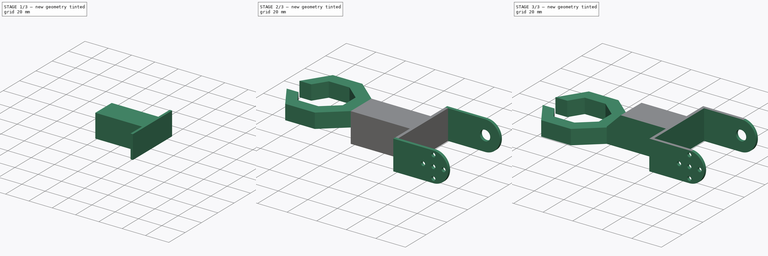
[diagram: build sequence overview — one tinted view per stage of 3, left to right]
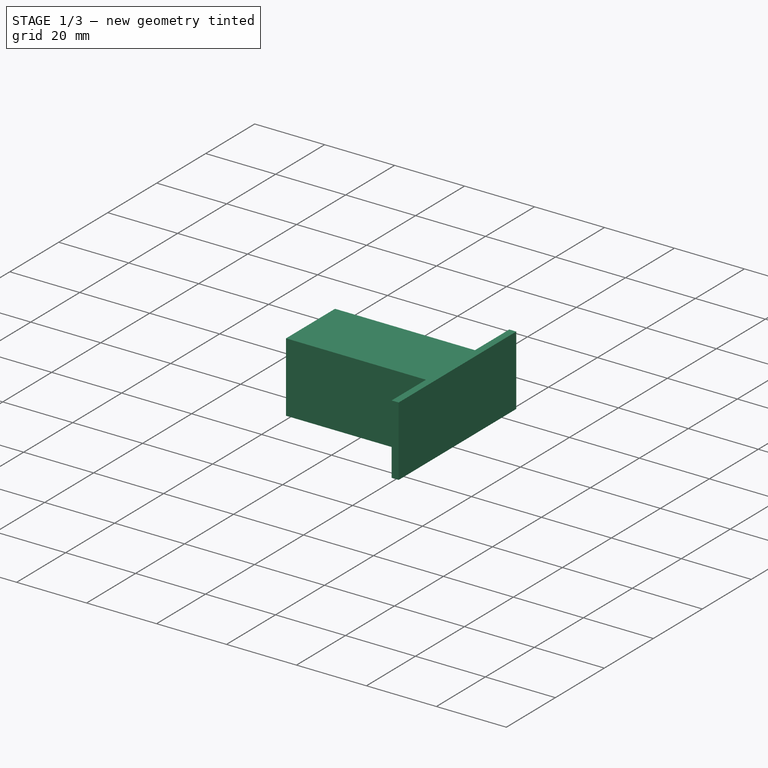
[diagram: stage 1 of 3 — iso view after this stage's code; geometry added in this stage tinted green]
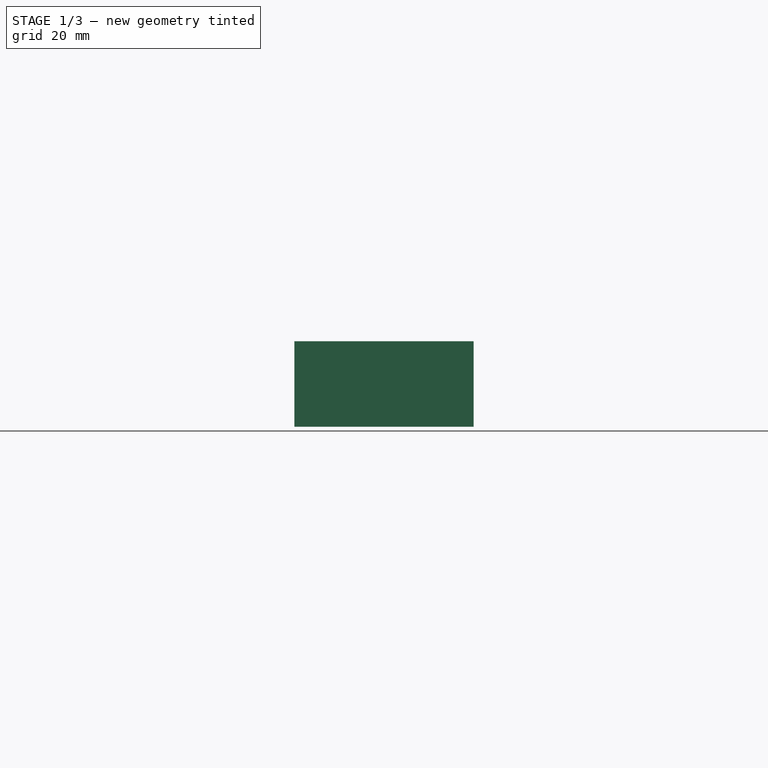
[diagram: stage 1 of 3 — front view after this stage's code; geometry added in this stage tinted green]
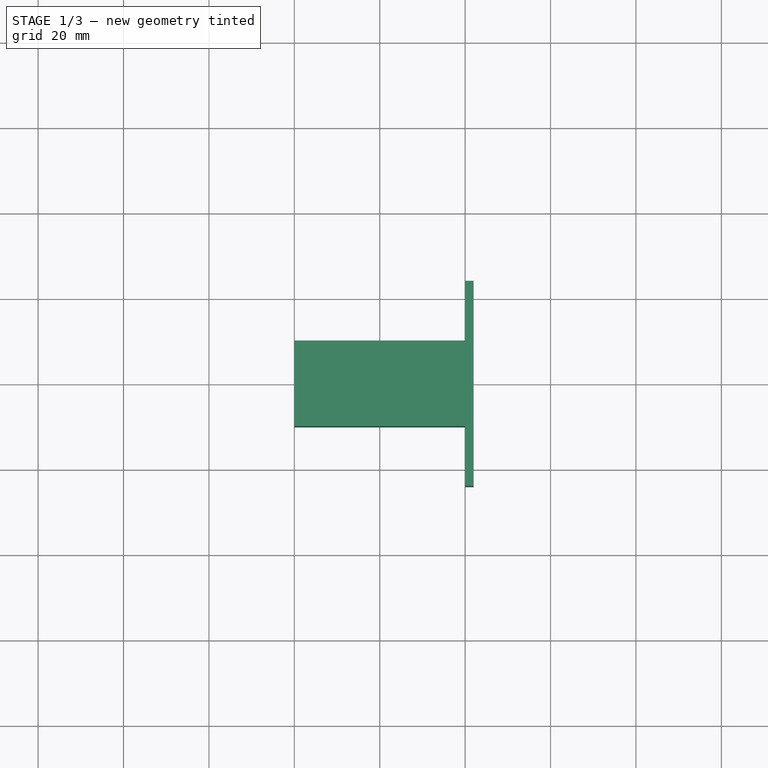
[diagram: stage 1 of 3 — top view after this stage's code; geometry added in this stage tinted green]
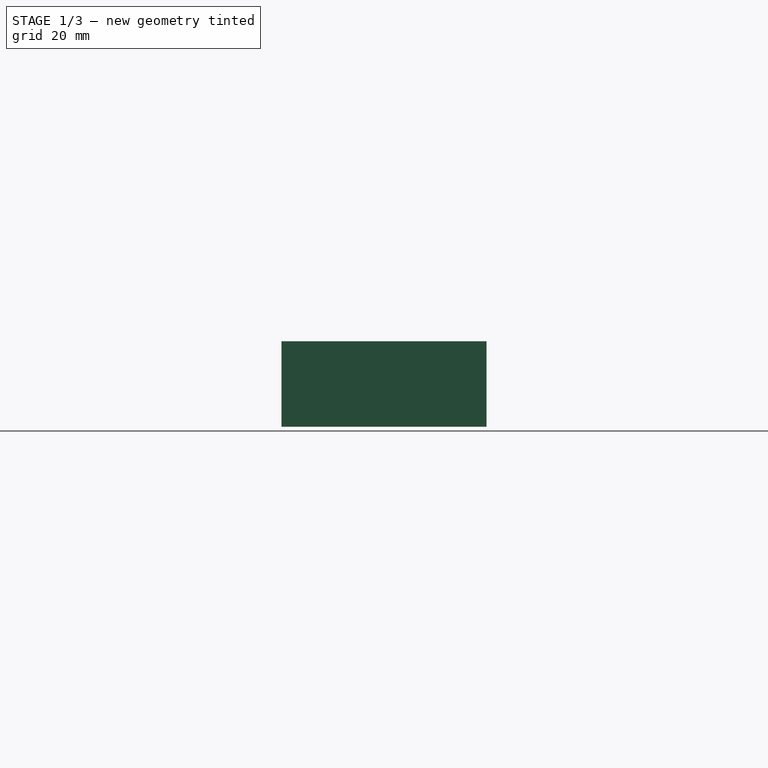
[diagram: stage 1 of 3 — right view after this stage's code; geometry added in this stage tinted green]
FCSTD DOCUMENT  (FreeCAD 0.20R29177 +426 (Git))
Label: 10L_lower_arm
License: All rights reserved
LicenseURL: http://en.wikipedia.org/wiki/All_rights_reserved
objects: Sketcher::SketchObject×5, PartDesign::Pad×5, Spreadsheet::Sheet×1, PartDesign::Chamfer×1, PartDesign::Body×1, Part::Mirroring×1
note: 19 computed .brp shape members not serialized (recipe doc carries the construction recipe); baked Part::Feature solids carry a one-line shape summary decoded from their .brp

FEATURE [Sketcher::SketchObject] Sketch
  FullyConstrained = true
  MapMode = 5
  Support = -> [XY_Plane]
  expr: Constraints[6] = Spreadsheet.connector_x_len
  expr: Constraints[8] = Spreadsheet.connector_y_len
  sketch-geometry (4):
    g0: LineSegment StartX=-20 StartY=10 StartZ=0 EndX=20 EndY=10 EndZ=0
    g1: LineSegment StartX=20 StartY=10 StartZ=0 EndX=20 EndY=-10 EndZ=0
    g2: LineSegment StartX=20 StartY=-10 StartZ=0 EndX=-20 EndY=-10 EndZ=0
    g3: LineSegment StartX=-20 StartY=-10 StartZ=0 EndX=-20 EndY=10 EndZ=0
  constraints (10):
    c: Coincident(g0,g1)
    c: Coincident(g1,g2)
    c: Coincident(g2,g3)
    c: Coincident(g3,g0)
    c: Horizontal(g2)
    c: Vertical(g1)
    c: DistanceX(g0,g0) = 40
    c: Symmetric(g0,g2,g-1)
    c: DistanceY(g2,g0) = 20
    c: Symmetric(g0,g0,g-2)
FEATURE [PartDesign::Pad] Pad
  Direction = (0,0,1)
  Length = 20
  Length2 = 10
  Profile = -> Sketch
  ReferenceAxis = -> Sketch [N_Axis]
  Type = 0
FEATURE [Sketcher::SketchObject] Sketch001
  ExternalGeometry = -> [Pad]
  FullyConstrained = true
  MapMode = 5
  Placement = pos=(20,0,0) rot=(0.57735,0.57735,0.57735;2.0944rad)
  Support = -> [Pad]
  expr: Constraints[6] = Spreadsheet.elbow_plate_y_len
  expr: Constraints[7] = Spreadsheet.elbow_plate_z_len
  sketch-geometry (4):
    g0: LineSegment StartX=-24 StartY=20 StartZ=0 EndX=24 EndY=20 EndZ=0
    g1: LineSegment StartX=24 StartY=20 StartZ=0 EndX=24 EndY=0 EndZ=0
    g2: LineSegment StartX=24 StartY=0 StartZ=0 EndX=-24 EndY=0 EndZ=0
    g3: LineSegment StartX=-24 StartY=0 StartZ=0 EndX=-24 EndY=20 EndZ=0
  constraints (11):
    c: Coincident(g0,g1)
    c: Coincident(g1,g2)
    c: Coincident(g2,g3)
    c: Coincident(g3,g0)
    c: Horizontal(g2)
    c: Vertical(g1)
    c: DistanceX(g0,g0) = 48
    c: DistanceY(g2,g0) = 20
    c: Symmetric(g0,g0,g-2)
    c: Equal(g0,g2)
    c: Horizontal(g2,g-6)
FEATURE [PartDesign::Pad] Pad001
  BaseFeature = -> Pad
  Direction = (1,0,0)
  Length = 2
  Length2 = 10
  Profile = -> Sketch001
  ReferenceAxis = -> Sketch001 [N_Axis]
  Type = 0
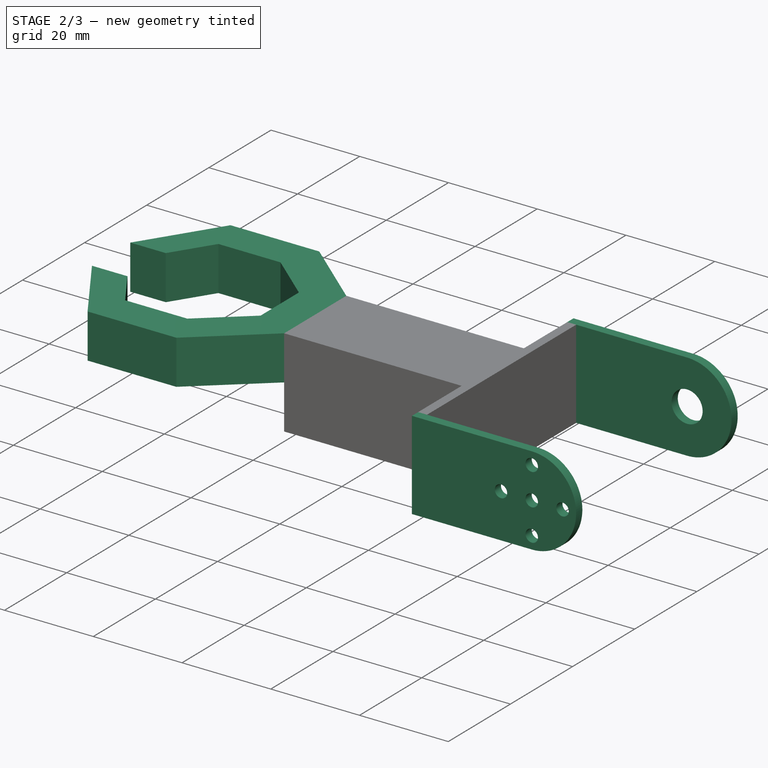
[diagram: stage 2 of 3 — iso view after this stage's code; geometry added in this stage tinted green]
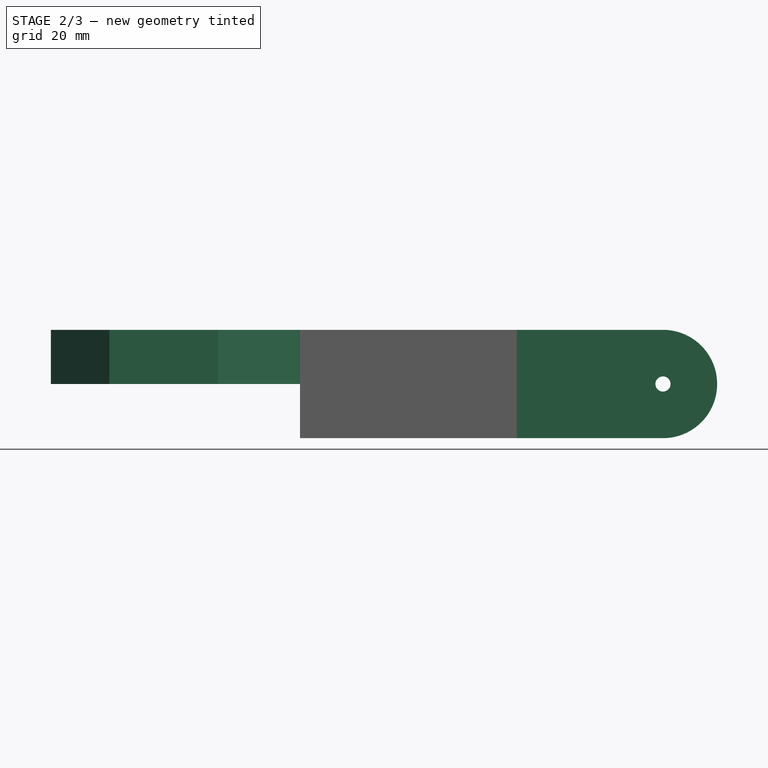
[diagram: stage 2 of 3 — front view after this stage's code; geometry added in this stage tinted green]
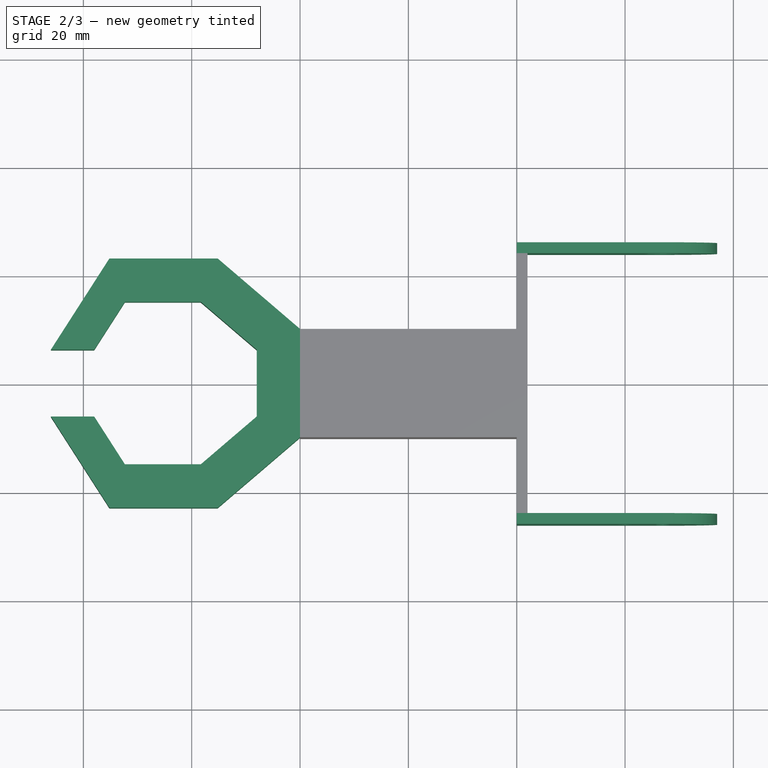
[diagram: stage 2 of 3 — top view after this stage's code; geometry added in this stage tinted green]
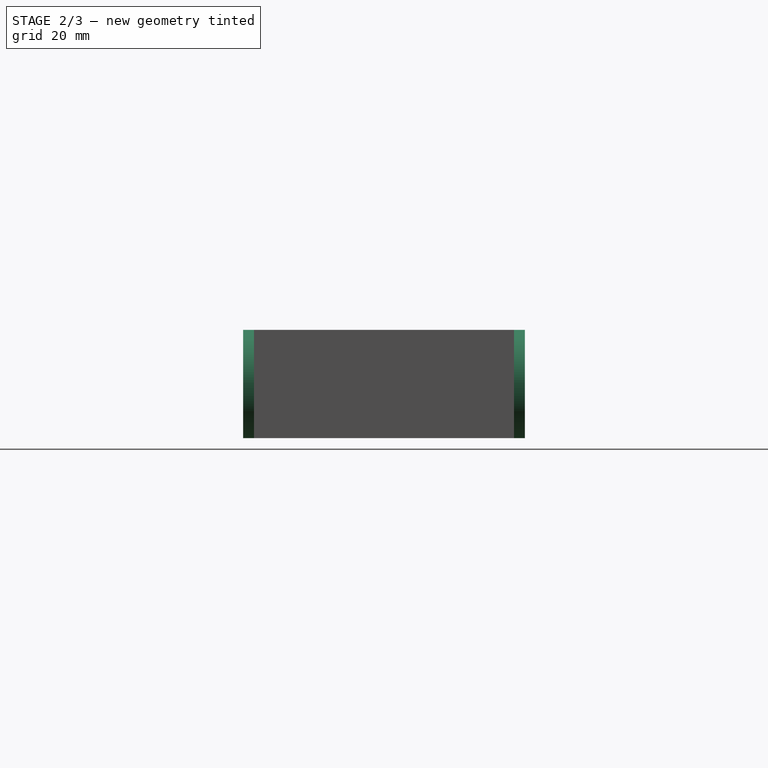
[diagram: stage 2 of 3 — right view after this stage's code; geometry added in this stage tinted green]
FEATURE [Sketcher::SketchObject] Sketch002
  ExternalGeometry = -> [Pad001]
  FullyConstrained = true
  MapMode = 5
  Placement = pos=(0,-24,0) rot=(1,0,0;1.5708rad)
  Support = -> [Pad001]
  expr: Constraints[11] = Spreadsheet.servo_center_x_pos
  expr: Constraints[2] = Spreadsheet.servo_outer_dist
  expr: Constraints[7] = Spreadsheet.servo_hole_dia
  expr: Constraints[8] = Spreadsheet.servo_base_dist
  sketch-geometry (9):
    g0: Circle CenterX=47 CenterY=10 CenterZ=0 NormalX=0 NormalY=0 NormalZ=1 AngleXU=0 Radius=1.4
    g1: Circle CenterX=47 CenterY=17.205 CenterZ=0 NormalX=0 NormalY=0 NormalZ=1 AngleXU=0 Radius=1.4
    g2: Circle CenterX=53.9345 CenterY=10 CenterZ=0 NormalX=0 NormalY=0 NormalZ=1 AngleXU=0 Radius=1.4
    g3: Circle CenterX=47 CenterY=2.795 CenterZ=0 NormalX=0 NormalY=0 NormalZ=1 AngleXU=0 Radius=1.4
    g4: Circle CenterX=40.0655 CenterY=10 CenterZ=0 NormalX=0 NormalY=0 NormalZ=1 AngleXU=0 Radius=1.4
    g5: LineSegment StartX=20 StartY=20 StartZ=0 EndX=47 EndY=20 EndZ=0
    g6: LineSegment StartX=20 StartY=0 StartZ=0 EndX=47 EndY=0 EndZ=0
    g7: ArcOfCircle CenterX=47 CenterY=10 CenterZ=0 NormalX=0 NormalY=0 NormalZ=1 AngleXU=0 Radius=10 StartAngle=4.71239 EndAngle=7.85398
    g8: LineSegment StartX=20 StartY=20 StartZ=0 EndX=20 EndY=0 EndZ=0
  constraints (23):
    c: Horizontal(g4,g2)
    c: Vertical(g1,g3)
    c: Distance(g4,g1) = 10
    c: Equal(g3,g0)
    c: Equal(g3,g4)
    c: Equal(g3,g1)
    c: Equal(g3,g2)
    c: Diameter(g3) = 2.8
    c: DistanceY(g3,g1) = 14.41
    c: Symmetric(g4,g2,g0)
    c: Symmetric(g1,g3,g0)
    c: DistanceX(g-4,g0) = 27
    c: Coincident(g5,g-4)
    c: Horizontal(g5)
    c: Coincident(g6,g-5)
    c: Horizontal(g6)
    c: Vertical(g5,g6)
    c: Coincident(g7,g5)
    c: Coincident(g7,g6)
    c: Vertical(g7,g5)
    c: Coincident(g7,g0)
    c: Coincident(g8,g5)
    c: Coincident(g8,g6)
FEATURE [PartDesign::Pad] Pad002
  BaseFeature = -> Pad001
  Direction = (0,-1,2e-16)
  Length = 2
  Length2 = 10
  Profile = -> Sketch002
  ReferenceAxis = -> Sketch002 [N_Axis]
  Type = 0
FEATURE [Spreadsheet::Sheet] Spreadsheet
  cells = A2=thickness; B2(thickness)=2; A3=connector_x_len; B3(connector_x_len)=40; A4=connector_y_len; B4(connector_y_len)=20; A5=elbow_plate_y_len; B5(elbow_plate_y_len)=48; A6=elbow_plate_z_len; B6(elbow_plate_z_len)=20; A7=servo_center_x_pos; B7(servo_center_x_pos)==B2 + 25; C7=c; A8=servo_outer_dist; B8(servo_outer_dist)=10; A9=servo_base_dist; B9(servo_base_dist)=14.41; C9=should be calced; A10=servo_hole_dia; B10(servo_hole_dia)=2.8; A11=axis_hole_dia; B11(axis_hole_dia)=7; A12=finger_dia; B12(finger_dia)=8; A13=hand_inner_dia; B13(hand_inner_dia)=30
FEATURE [Sketcher::SketchObject] Sketch003
  ExternalGeometry = -> [Pad002]
  FullyConstrained = true
  MapMode = 5
  Placement = pos=(0,24,0) rot=(0,0.707107,0.707107;3.14159rad)
  Support = -> [Pad002]
  expr: Constraints[12] = Spreadsheet.axis_hole_dia
  expr: Constraints[7] = Spreadsheet.servo_center_x_pos
  sketch-geometry (5):
    g0: LineSegment StartX=-20 StartY=20 StartZ=0 EndX=-47 EndY=20 EndZ=0
    g1: LineSegment StartX=-20 StartY=0 StartZ=0 EndX=-47 EndY=0 EndZ=0
    g2: Circle CenterX=-47 CenterY=10 CenterZ=0 NormalX=0 NormalY=0 NormalZ=1 AngleXU=0 Radius=3.5
    g3: LineSegment StartX=-20 StartY=20 StartZ=0 EndX=-20 EndY=0 EndZ=0
    g4: ArcOfCircle CenterX=-47 CenterY=10 CenterZ=0 NormalX=0 NormalY=0 NormalZ=1 AngleXU=0 Radius=10 StartAngle=1.5708 EndAngle=4.71239
  constraints (13):
    c: Coincident(g0,g-3)
    c: Horizontal(g0)
    c: Coincident(g1,g-4)
    c: PointOnObject(g1,g-1)
    c: Coincident(g3,g0)
    c: Coincident(g3,g1)
    c: Vertical(g0,g1)
    c: DistanceX(g2,g1) = 27
    c: Symmetric(g0,g1,g2)
    c: Coincident(g4,g0)
    c: Coincident(g4,g1)
    c: Vertical(g4,g0)
    c: Diameter(g2) = 7
FEATURE [PartDesign::Pad] Pad003
  BaseFeature = -> Pad002
  Direction = (0,1,-2e-16)
  Length = 2
  Length2 = 10
  Profile = -> Sketch003
  ReferenceAxis = -> Sketch003 [N_Axis]
  Type = 0
  expr: Length = Spreadsheet.thickness
FEATURE [Sketcher::SketchObject] Sketch004
  ExternalGeometry = -> [Pad003]
  FullyConstrained = true
  MapMode = 5
  Placement = pos=(0,0,20) rot=(0,0,1;0rad)
  Support = -> [Pad003]
  expr: Constraints[21] = Spreadsheet.finger_dia
  expr: Constraints[22] = Spreadsheet.finger_dia
  expr: Constraints[23] = Spreadsheet.finger_dia
  expr: Constraints[25] = Spreadsheet.hand_inner_dia
  expr: Constraints[26] = Spreadsheet.hand_inner_dia
  expr: Constraints[32] = Spreadsheet.connector_y_len
  expr: Constraints[33] = Spreadsheet.connector_y_len
  expr: Constraints[34] = Spreadsheet.connector_y_len
  expr: Constraints[35] = Spreadsheet.connector_y_len
  expr: Constraints[36] = Spreadsheet.connector_y_len
  expr: Constraints[41] = Spreadsheet.finger_dia
  sketch-geometry (16):
    g0: LineSegment StartX=-20 StartY=10 StartZ=0 EndX=-35.1987 EndY=23 EndZ=0
    g1: LineSegment StartX=-35.1987 StartY=23 StartZ=0 EndX=-55.1987 EndY=23 EndZ=0
    g2: LineSegment StartX=-55.1987 StartY=23 StartZ=0 EndX=-66 EndY=6.16754 EndZ=0
    g3: LineSegment StartX=-66 StartY=6.16754 StartZ=0 EndX=-58 EndY=6.16754 EndZ=0
    g4: LineSegment StartX=-58 StartY=6.16754 StartZ=0 EndX=-52.3323 EndY=15 EndZ=0
    g5: LineSegment StartX=-52.3323 StartY=15 StartZ=0 EndX=-38.3263 EndY=15 EndZ=0
    g6: LineSegment StartX=-38.3263 StartY=15 StartZ=0 EndX=-28 EndY=6.16754 EndZ=0
    g7: LineSegment StartX=-28 StartY=6.16754 StartZ=0 EndX=-28 EndY=-6.16754 EndZ=0
    g8: LineSegment StartX=-28 StartY=-6.16754 StartZ=0 EndX=-38.3263 EndY=-15 EndZ=0
    g9: LineSegment StartX=-38.3263 StartY=-15 StartZ=0 EndX=-52.3323 EndY=-15 EndZ=0
    g10: LineSegment StartX=-52.3323 StartY=-15 StartZ=0 EndX=-58 EndY=-6.16754 EndZ=0
    g11: LineSegment StartX=-58 StartY=-6.16754 StartZ=0 EndX=-66 EndY=-6.16754 EndZ=0
    g12: LineSegment StartX=-66 StartY=-6.16754 StartZ=0 EndX=-55.1987 EndY=-23 EndZ=0
    g13: LineSegment StartX=-55.1987 StartY=-23 StartZ=0 EndX=-35.1987 EndY=-23 EndZ=0
    g14: LineSegment StartX=-35.1987 StartY=-23 StartZ=0 EndX=-20 EndY=-10 EndZ=0
    g15: LineSegment StartX=-20 StartY=-10 StartZ=0 EndX=-20 EndY=10 EndZ=0
  constraints (42):
    c: Coincident(g0,g-3)
    c: Coincident(g0,g1)
    c: Horizontal(g1)
    c: Coincident(g1,g2)
    c: Coincident(g3,g4)
    c: Coincident(g4,g5)
    c: Horizontal(g5)
    c: Coincident(g5,g6)
    c: Coincident(g6,g7)
    c: Coincident(g7,g8)
    c: Coincident(g8,g9)
    c: Horizontal(g9)
    c: Coincident(g9,g10)
    c: Coincident(g10,g11)
    c: Coincident(g11,g12)
    c: Coincident(g12,g13)
    c: Horizontal(g13)
    c: Coincident(g13,g14)
    c: Coincident(g14,g-4)
    c: Coincident(g14,g15)
    c: Coincident(g15,g0)
    c: DistanceX(g6,g0) = 8
    c: DistanceY(g5,g0) = 8
    c: DistanceY(g13,g8) = 8
    c: Symmetric(g6,g7,g-1)
    c: DistanceY(g8,g5) = 30
    c: DistanceX(g3,g6) = 30
    c: Symmetric(g5,g8,g-1)
    c: Vertical(g4,g9)
    c: Symmetric(g10,g3,g-1)
    c: Coincident(g2,g3)
    c: Symmetric(g11,g2,g-1)
    c: Distance(g0) = 20
    c: Distance(g14) = 20
    c: DistanceX(g13,g13) = 20
    c: DistanceX(g1,g1) = 20
    c: Distance(g2) = 20
    c: Parallel(g6,g0)
    c: Parallel(g4,g2)
    c: Horizontal(g3,g6)
    c: Horizontal(g2,g3)
    c: DistanceX(g11,g10) = 8
FEATURE [PartDesign::Pad] Pad004
  BaseFeature = -> Pad003
  Direction = (0,0,1)
  Length = 10
  Length2 = 10
  Profile = -> Sketch004
  ReferenceAxis = -> Sketch004 [N_Axis]
  Reversed = true
  Type = 0
  expr: Length = 10mm
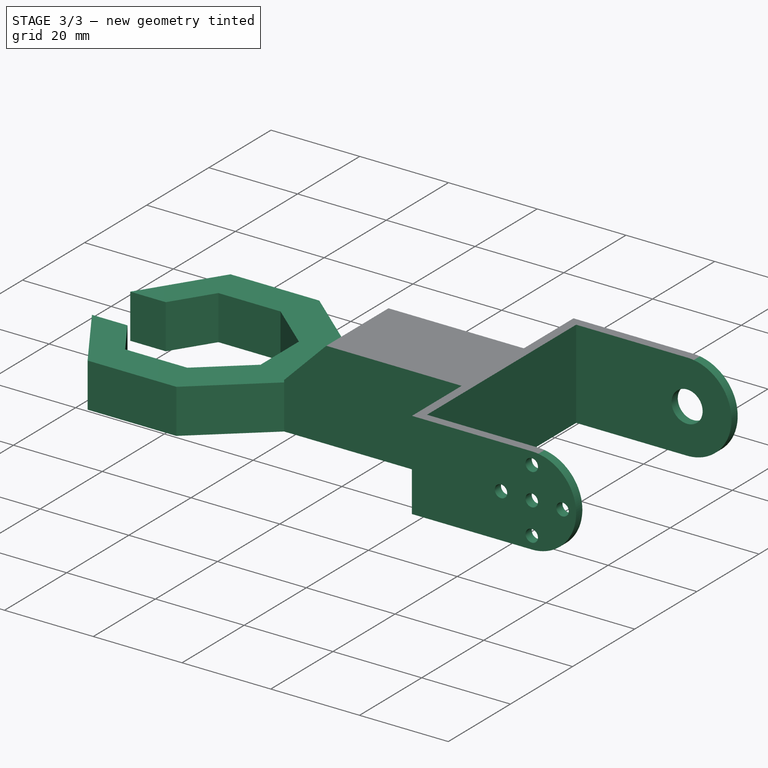
[diagram: stage 3 of 3 — iso view after this stage's code; geometry added in this stage tinted green]
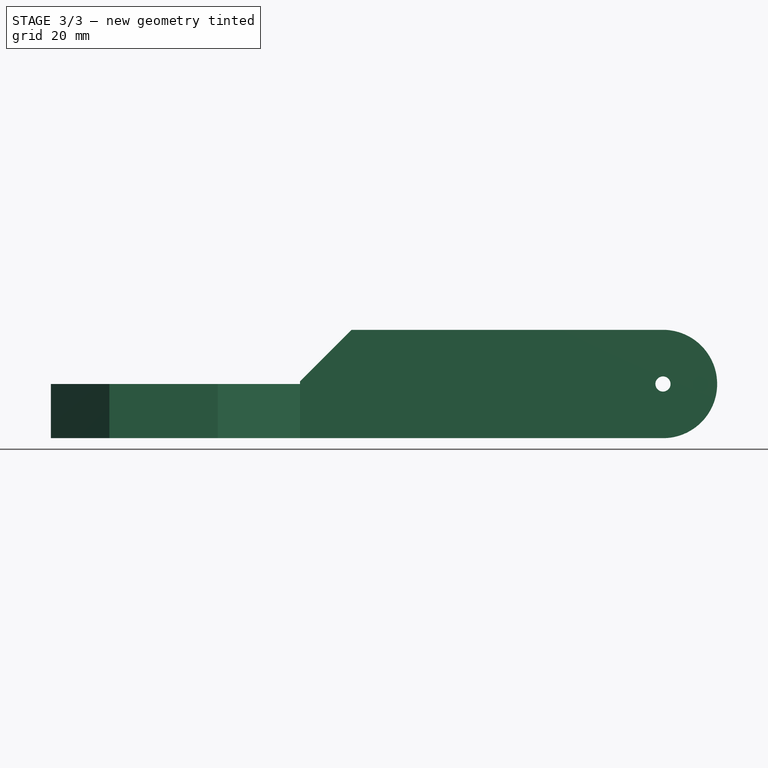
[diagram: stage 3 of 3 — front view after this stage's code; geometry added in this stage tinted green]
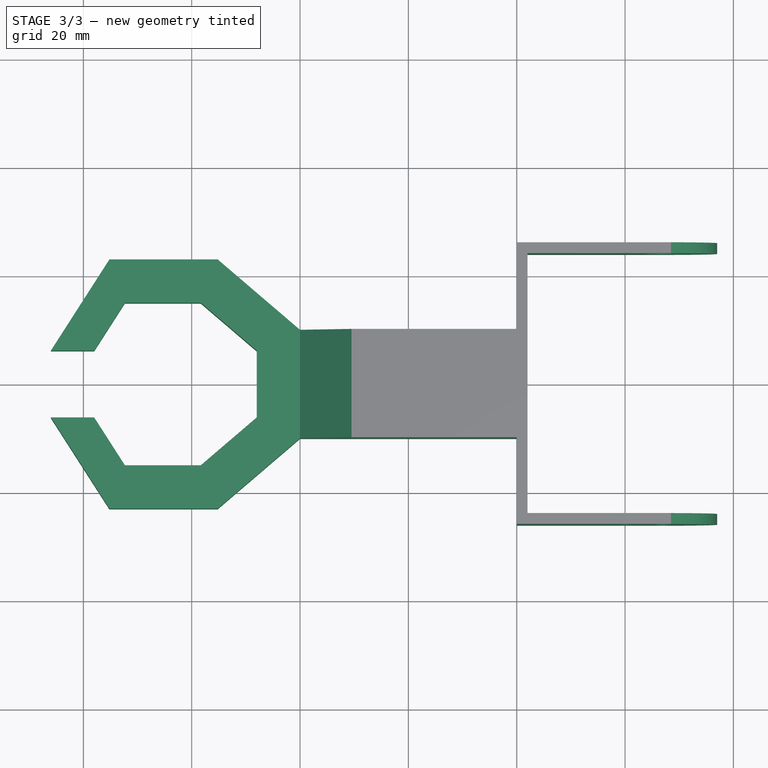
[diagram: stage 3 of 3 — top view after this stage's code; geometry added in this stage tinted green]
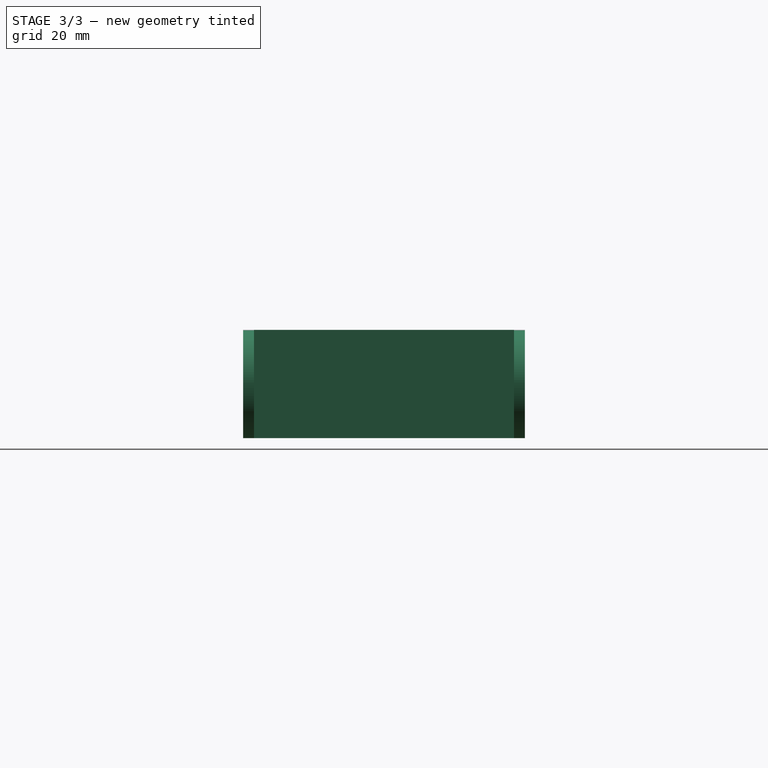
[diagram: stage 3 of 3 — right view after this stage's code; geometry added in this stage tinted green]
FEATURE [PartDesign::Chamfer] Chamfer
  Angle = 45
  Base = -> Pad004 [Edge83]
  BaseFeature = -> Pad004
  ChamferType = 0
  FlipDirection = false
  Size = 9.5
  Size2 = 1
  SupportTransform = false
  UseAllEdges = false
FEATURE [PartDesign::Body] Body
  Group = -> [Sketch,Pad,Sketch001,Pad001,Sketch002,Pad002,Sketch003,Pad003,Sketch004,Pad004,Chamfer]
  Origin = -> Origin
  Tip = -> Chamfer
FEATURE [Part::Mirroring] Part__Mirroring  label="Body (Mirror #1)"
  Base = (0,0,0)
  Normal = (0,0,1)
  Source = -> Body
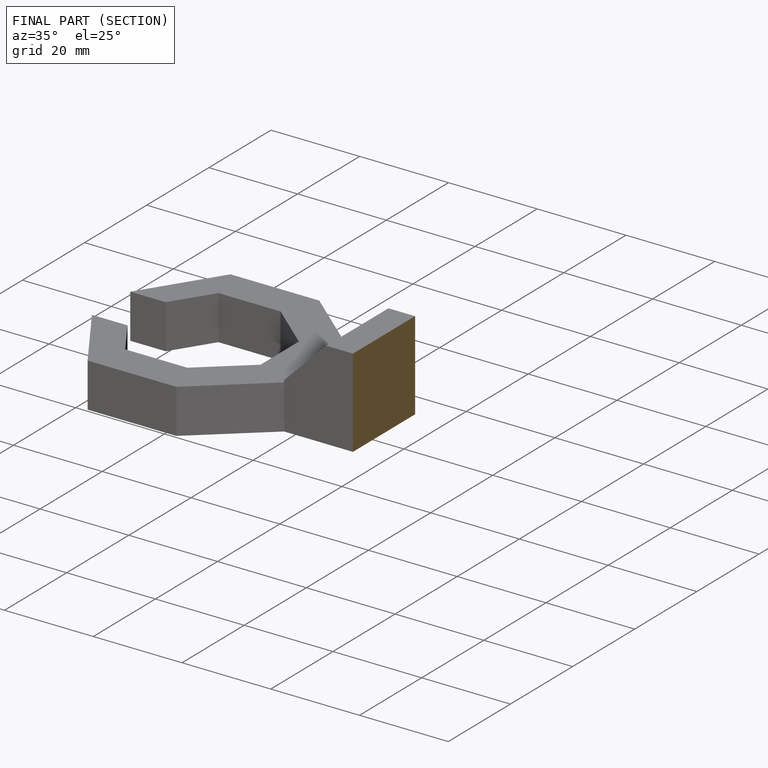
[diagram: finished part — half-section view (interior)]
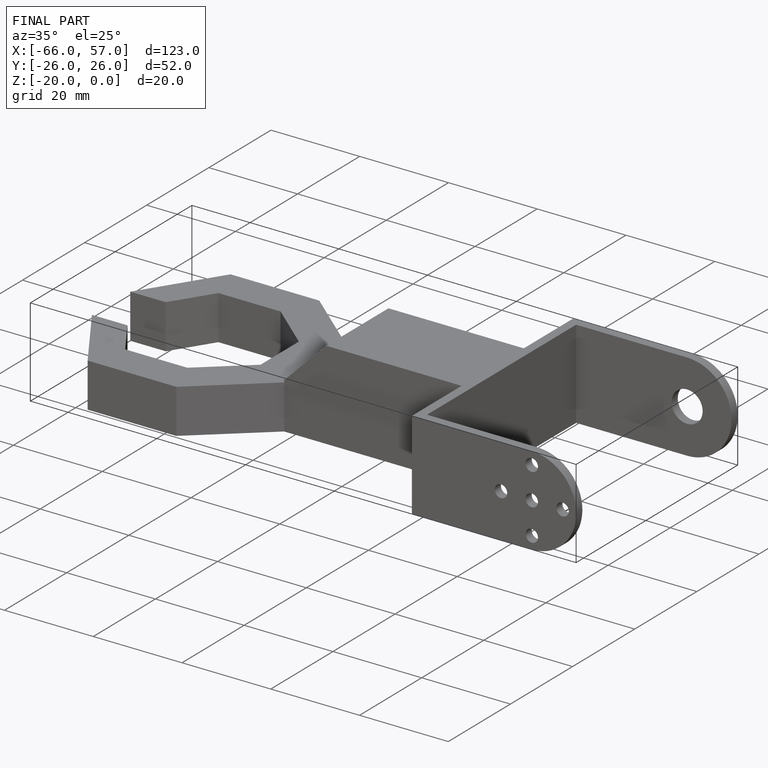
[diagram: finished part — iso view with bounding-box wireframe]
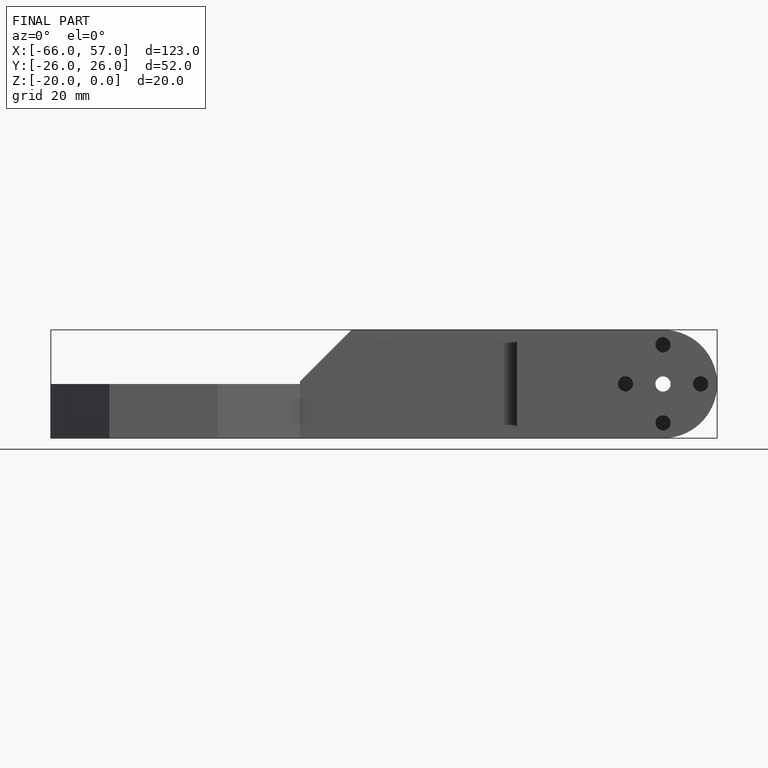
[diagram: finished part — front view with bounding-box wireframe]
